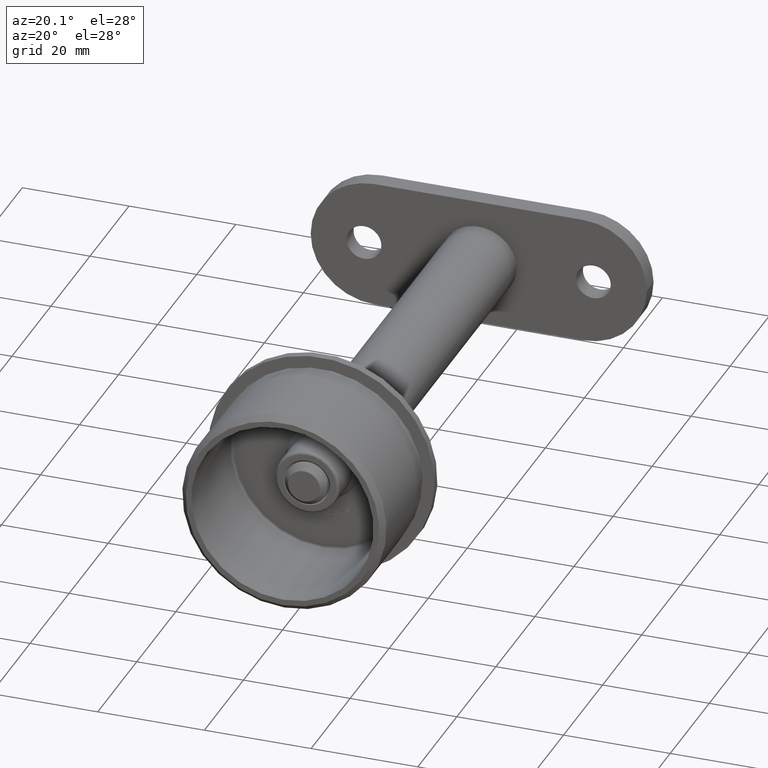
[diagram: clean part render]
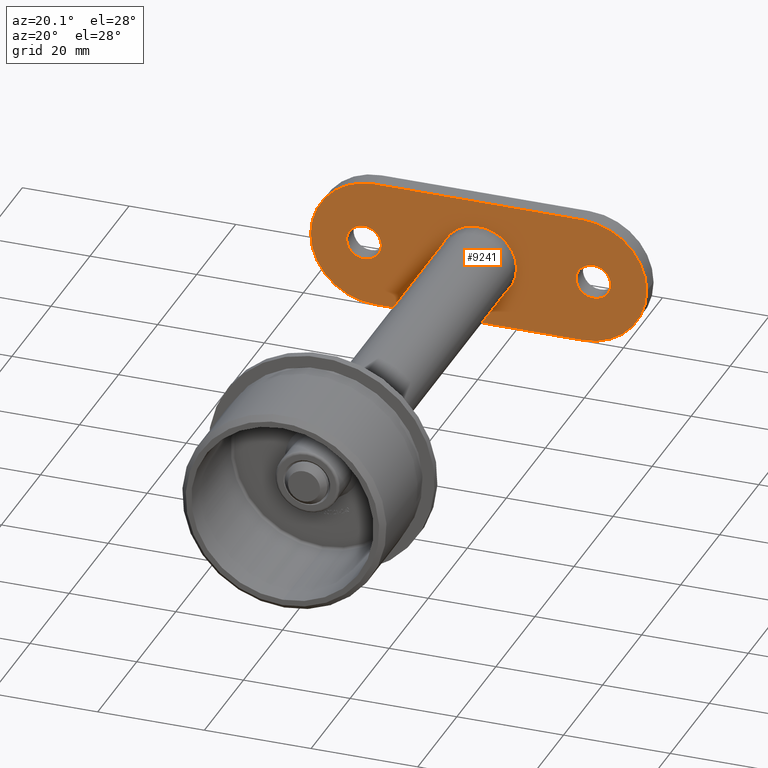
[diagram: same view with one face highlighted and labeled with its STEP entity id]
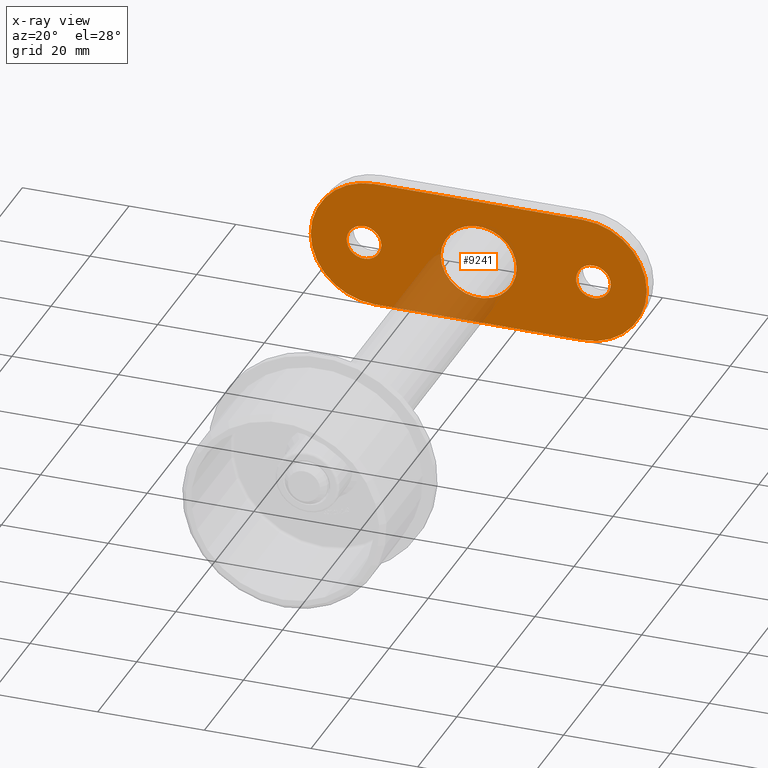
[diagram: x-ray of the same camera — body ghosted, the highlighted face saturated]
A machine part, auxiliary view. The second image highlights one B-rep face of the part: STEP entity #9241.
The next image is the same camera in x-ray: the body ghosted, the highlighted face saturated — about 10% of this face is hidden behind the body in this view.
In plain terms, the highlighted planar face has unit normal (0, 1, 0).
Its self-contained STEP definition (entity closure, byte-faithful):
#99 = LINE ( 'NONE', #16508, #533 ) ;
#533 = VECTOR ( 'NONE', #2061, 1000.000000000000000 ) ;
#631 = CARTESIAN_POINT ( 'NONE',  ( -1.444447458290426890E-30, 0.000000000000000000, 24.74999999999999645 ) ) ;
#815 = CIRCLE ( 'NONE', #15209, 12.00000000000000000 ) ;
#851 = FACE_BOUND ( 'NONE', #13170, .T. ) ;
#874 = ORIENTED_EDGE ( 'NONE', *, *, #2115, .F. ) ;
#942 = ORIENTED_EDGE ( 'NONE', *, *, #13117, .T. ) ;
#1302 = VERTEX_POINT ( 'NONE', #5664 ) ;
#1439 = EDGE_CURVE ( 'NONE', #1302, #7155, #13063, .T. ) ;
#1737 = DIRECTION ( 'NONE',  ( 0.000000000000000000, 0.000000000000000000, -1.000000000000000000 ) ) ;
#1753 = FACE_BOUND ( 'NONE', #11311, .T. ) ;
#1973 = CARTESIAN_POINT ( 'NONE',  ( -12.00000000000000000, 0.000000000000000000, 31.50000000000000000 ) ) ;
#2031 = PLANE ( 'NONE',  #8002 ) ;
#2061 = DIRECTION ( 'NONE',  ( 0.000000000000000000, 0.000000000000000000, -1.000000000000000000 ) ) ;
#2115 = EDGE_CURVE ( 'NONE', #4508, #16492, #14855, .T. ) ;
#2163 = DIRECTION ( 'NONE',  ( -0.000000000000000000, -1.000000000000000000, -0.000000000000000000 ) ) ;
#2614 = CARTESIAN_POINT ( 'NONE',  ( -2.888894916580853780E-31, 0.000000000000000000, -31.50000000000000000 ) ) ;
#2637 = AXIS2_PLACEMENT_3D ( 'NONE', #17640, #3141, #9008 ) ;
#3112 = DIRECTION ( 'NONE',  ( 0.000000000000000000, 0.000000000000000000, 1.000000000000000000 ) ) ;
#3141 = DIRECTION ( 'NONE',  ( -0.000000000000000000, -1.000000000000000000, -0.000000000000000000 ) ) ;
#3315 = ORIENTED_EDGE ( 'NONE', *, *, #11269, .T. ) ;
#3697 = CIRCLE ( 'NONE', #9898, 7.099999999999999645 ) ;
#4199 = VECTOR ( 'NONE', #6476, 1000.000000000000000 ) ;
#4369 = ORIENTED_EDGE ( 'NONE', *, *, #6781, .T. ) ;
#4508 = VERTEX_POINT ( 'NONE', #11797 ) ;
#4978 = CARTESIAN_POINT ( 'NONE',  ( 9.629649721936179265E-32, 0.000000000000000000, 19.50000000000000000 ) ) ;
#4991 = CIRCLE ( 'NONE', #12556, 12.00000000000000000 ) ;
#5325 = CIRCLE ( 'NONE', #14126, 12.00000000000000000 ) ;
#5462 = CARTESIAN_POINT ( 'NONE',  ( 9.629649721936179265E-32, 0.000000000000000000, 19.50000000000000000 ) ) ;
#5664 = CARTESIAN_POINT ( 'NONE',  ( -12.00000000000000000, 0.000000000000000000, -19.50000000000000355 ) ) ;
#5729 = DIRECTION ( 'NONE',  ( 0.000000000000000000, 1.000000000000000000, 0.000000000000000000 ) ) ;
#5981 = CARTESIAN_POINT ( 'NONE',  ( 12.00000000000000000, 0.000000000000000000, 31.50000000000000000 ) ) ;
#6177 = CARTESIAN_POINT ( 'NONE',  ( -1.829633447167874060E-30, 0.000000000000000000, -18.25000000000000000 ) ) ;
#6436 = DIRECTION ( 'NONE',  ( 0.000000000000000000, 0.000000000000000000, 1.000000000000000000 ) ) ;
#6476 = DIRECTION ( 'NONE',  ( 0.000000000000000000, 0.000000000000000000, -1.000000000000000000 ) ) ;
#6781 = EDGE_CURVE ( 'NONE', #12991, #12991, #7280, .T. ) ;
#6923 = DIRECTION ( 'NONE',  ( 0.000000000000000000, 0.000000000000000000, 1.000000000000000000 ) ) ;
#7119 = ORIENTED_EDGE ( 'NONE', *, *, #15562, .T. ) ;
#7155 = VERTEX_POINT ( 'NONE', #2614 ) ;
#7236 = FACE_OUTER_BOUND ( 'NONE', #9864, .T. ) ;
#7280 = CIRCLE ( 'NONE', #9094, 3.249999999999999556 ) ;
#7317 = CIRCLE ( 'NONE', #16589, 3.249999999999999556 ) ;
#8002 = AXIS2_PLACEMENT_3D ( 'NONE', #1973, #10550, #10731 ) ;
#8776 = CARTESIAN_POINT ( 'NONE',  ( -1.829633447167874060E-30, 0.000000000000000000, -21.50000000000000000 ) ) ;
#8965 = ORIENTED_EDGE ( 'NONE', *, *, #1439, .T. ) ;
#9008 = DIRECTION ( 'NONE',  ( 8.881784197001252323E-16, 0.000000000000000000, 1.000000000000000000 ) ) ;
#9094 = AXIS2_PLACEMENT_3D ( 'NONE', #8776, #5729, #3112 ) ;
#9109 = DIRECTION ( 'NONE',  ( 0.000000000000000000, -1.000000000000000000, 0.000000000000000000 ) ) ;
#9119 = VERTEX_POINT ( 'NONE', #9282 ) ;
#9241 = ADVANCED_FACE ( 'NONE', ( #851, #1753, #13347, #7236 ), #2031, .F. ) ;
#9282 = CARTESIAN_POINT ( 'NONE',  ( 0.000000000000000000, 0.000000000000000000, -7.099999999999999645 ) ) ;
#9348 = ORIENTED_EDGE ( 'NONE', *, *, #13201, .T. ) ;
#9501 = DIRECTION ( 'NONE',  ( -0.000000000000000000, -1.000000000000000000, -0.000000000000000000 ) ) ;
#9864 = EDGE_LOOP ( 'NONE', ( #8965, #17639, #874, #3315, #942, #9348 ) ) ;
#9898 = AXIS2_PLACEMENT_3D ( 'NONE', #16423, #9109, #1737 ) ;
#10550 = DIRECTION ( 'NONE',  ( 0.000000000000000000, 1.000000000000000000, 0.000000000000000000 ) ) ;
#10666 = VERTEX_POINT ( 'NONE', #18564 ) ;
#10731 = DIRECTION ( 'NONE',  ( 0.000000000000000000, 0.000000000000000000, 1.000000000000000000 ) ) ;
#10741 = CARTESIAN_POINT ( 'NONE',  ( 4.814824860968089633E-31, 0.000000000000000000, -19.50000000000000355 ) ) ;
#11269 = EDGE_CURVE ( 'NONE', #4508, #16059, #815, .T. ) ;
#11311 = EDGE_LOOP ( 'NONE', ( #4369 ) ) ;
#11797 = CARTESIAN_POINT ( 'NONE',  ( 12.00000000000000000, 0.000000000000000000, 19.50000000000000000 ) ) ;
#12007 = DIRECTION ( 'NONE',  ( 0.000000000000000000, 1.000000000000000000, 0.000000000000000000 ) ) ;
#12307 = DIRECTION ( 'NONE',  ( 0.000000000000000000, 0.000000000000000000, 1.000000000000000000 ) ) ;
#12556 = AXIS2_PLACEMENT_3D ( 'NONE', #10741, #2163, #12307 ) ;
#12851 = CARTESIAN_POINT ( 'NONE',  ( -2.888894916580853780E-31, 0.000000000000000000, 31.50000000000000000 ) ) ;
#12991 = VERTEX_POINT ( 'NONE', #6177 ) ;
#13019 = EDGE_LOOP ( 'NONE', ( #7119 ) ) ;
#13063 = CIRCLE ( 'NONE', #2637, 12.00000000000000000 ) ;
#13117 = EDGE_CURVE ( 'NONE', #16059, #10666, #5325, .T. ) ;
#13170 = EDGE_LOOP ( 'NONE', ( #15145 ) ) ;
#13201 = EDGE_CURVE ( 'NONE', #10666, #1302, #99, .T. ) ;
#13347 = FACE_BOUND ( 'NONE', #13019, .T. ) ;
#13542 = EDGE_CURVE ( 'NONE', #9119, #9119, #3697, .T. ) ;
#14126 = AXIS2_PLACEMENT_3D ( 'NONE', #4978, #9501, #15154 ) ;
#14342 = CARTESIAN_POINT ( 'NONE',  ( 12.00000000000000000, 0.000000000000000000, -19.50000000000000355 ) ) ;
#14855 = LINE ( 'NONE', #5981, #4199 ) ;
#15145 = ORIENTED_EDGE ( 'NONE', *, *, #13542, .F. ) ;
#15154 = DIRECTION ( 'NONE',  ( 0.000000000000000000, 0.000000000000000000, 1.000000000000000000 ) ) ;
#15209 = AXIS2_PLACEMENT_3D ( 'NONE', #5462, #18407, #6923 ) ;
#15487 = VERTEX_POINT ( 'NONE', #631 ) ;
#15562 = EDGE_CURVE ( 'NONE', #15487, #15487, #7317, .T. ) ;
#16059 = VERTEX_POINT ( 'NONE', #12851 ) ;
#16423 = CARTESIAN_POINT ( 'NONE',  ( 0.000000000000000000, 0.000000000000000000, 0.000000000000000000 ) ) ;
#16492 = VERTEX_POINT ( 'NONE', #14342 ) ;
#16508 = CARTESIAN_POINT ( 'NONE',  ( -12.00000000000000000, 0.000000000000000000, 31.50000000000000000 ) ) ;
#16589 = AXIS2_PLACEMENT_3D ( 'NONE', #17805, #12007, #6436 ) ;
#17394 = EDGE_CURVE ( 'NONE', #7155, #16492, #4991, .T. ) ;
#17639 = ORIENTED_EDGE ( 'NONE', *, *, #17394, .T. ) ;
#17640 = CARTESIAN_POINT ( 'NONE',  ( 4.814824860968089633E-31, 0.000000000000000000, -19.50000000000000355 ) ) ;
#17805 = CARTESIAN_POINT ( 'NONE',  ( -1.444447458290426890E-30, 0.000000000000000000, 21.50000000000000000 ) ) ;
#18407 = DIRECTION ( 'NONE',  ( -0.000000000000000000, -1.000000000000000000, -0.000000000000000000 ) ) ;
#18564 = CARTESIAN_POINT ( 'NONE',  ( -12.00000000000000000, 0.000000000000000000, 19.50000000000000000 ) ) ;